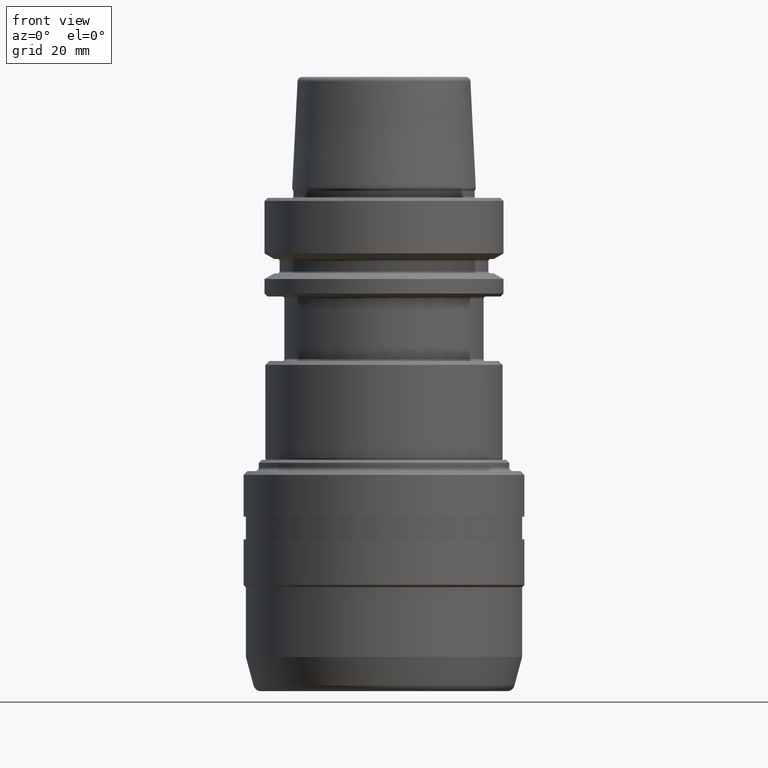
[diagram: clean part render]
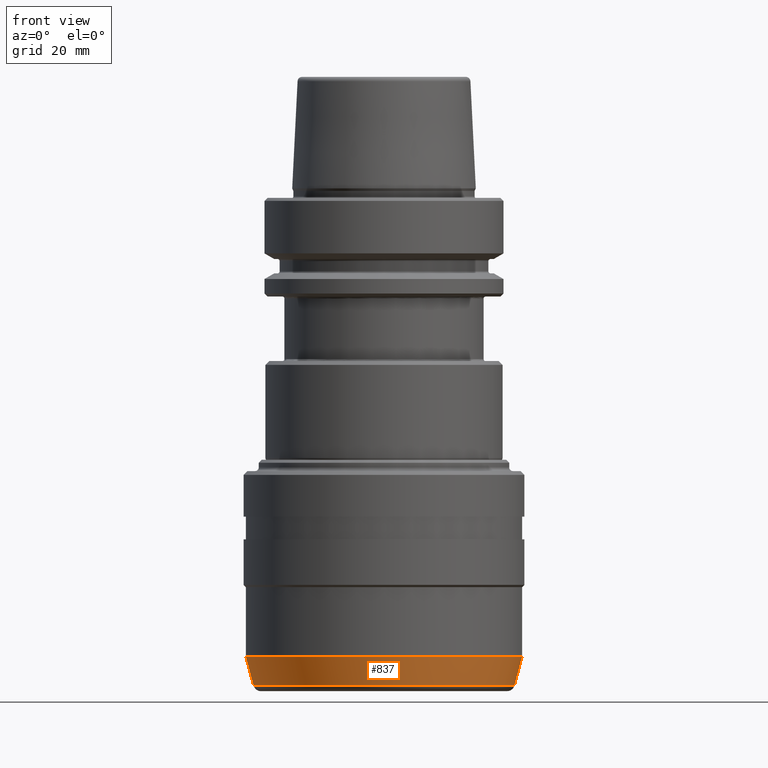
[diagram: same view with one face highlighted and labeled with its STEP entity id]
A machine part, front view. The second image highlights one B-rep face of the part: STEP entity #837.
In plain terms, the highlighted conical surface has half-angle 15 deg.
Its self-contained STEP definition (entity closure, byte-faithful):
#58 = CARTESIAN_POINT ( 'NONE',  ( -36.39999999999888300, 4.457714348896229400E-015, -120.9987247429033800 ) ) ;
#94 = VECTOR ( 'NONE', #853, 1000.000000000000000 ) ;
#140 = CARTESIAN_POINT ( 'NONE',  ( 0.0000000000000000000, 0.0000000000000000000, -120.9987247429033800 ) ) ;
#180 = EDGE_CURVE ( 'NONE', #665, #948, #1478, .T. ) ;
#243 = DIRECTION ( 'NONE',  ( 1.000000000000000000, 0.0000000000000000000, 0.0000000000000000000 ) ) ;
#250 = ORIENTED_EDGE ( 'NONE', *, *, #354, .F. ) ;
#278 = CARTESIAN_POINT ( 'NONE',  ( 0.0000000000000000000, 0.0000000000000000000, -120.9987247429033800 ) ) ;
#354 = EDGE_CURVE ( 'NONE', #1602, #948, #1171, .T. ) ;
#367 = CARTESIAN_POINT ( 'NONE',  ( 36.39999999999888300, 0.0000000000000000000, -120.9987247429033800 ) ) ;
#518 = LINE ( 'NONE', #1352, #94 ) ;
#531 = AXIS2_PLACEMENT_3D ( 'NONE', #140, #759, #1971 ) ;
#534 = AXIS2_PLACEMENT_3D ( 'NONE', #760, #750, #797 ) ;
#665 = VERTEX_POINT ( 'NONE', #1136 ) ;
#750 = DIRECTION ( 'NONE',  ( -0.0000000000000000000, -0.0000000000000000000, 1.000000000000000000 ) ) ;
#759 = DIRECTION ( 'NONE',  ( -0.0000000000000000000, -0.0000000000000000000, 1.000000000000000000 ) ) ;
#760 = CARTESIAN_POINT ( 'NONE',  ( 0.0000000000000000000, 0.0000000000000000000, -128.5163628331034700 ) ) ;
#797 = DIRECTION ( 'NONE',  ( 1.000000000000000000, 0.0000000000000000000, 0.0000000000000000000 ) ) ;
#837 = ADVANCED_FACE ( 'NONE', ( #1830 ), #1687, .T. ) ;
#853 = DIRECTION ( 'NONE',  ( -0.2588190451024925400, 3.169619151431419200E-017, 0.9659258262890758600 ) ) ;
#948 = VERTEX_POINT ( 'NONE', #367 ) ;
#978 = AXIS2_PLACEMENT_3D ( 'NONE', #278, #1999, #243 ) ;
#1018 = DIRECTION ( 'NONE',  ( 0.2588190451024925400, 0.0000000000000000000, 0.9659258262890758600 ) ) ;
#1030 = EDGE_CURVE ( 'NONE', #1611, #1602, #518, .T. ) ;
#1104 = ORIENTED_EDGE ( 'NONE', *, *, #1585, .T. ) ;
#1119 = ORIENTED_EDGE ( 'NONE', *, *, #1030, .F. ) ;
#1136 = CARTESIAN_POINT ( 'NONE',  ( 34.38565494474027400, 0.0000000000000000000, -128.5163628331034700 ) ) ;
#1171 = CIRCLE ( 'NONE', #531, 36.39999999999888300 ) ;
#1192 = CARTESIAN_POINT ( 'NONE',  ( -34.38565494474027400, 4.211028226466153600E-015, -128.5163628331034700 ) ) ;
#1352 = CARTESIAN_POINT ( 'NONE',  ( -36.39999999999888300, 4.457714348896229400E-015, -120.9987247429033800 ) ) ;
#1478 = LINE ( 'NONE', #1571, #1911 ) ;
#1571 = CARTESIAN_POINT ( 'NONE',  ( 36.39999999999888300, 0.0000000000000000000, -120.9987247429033800 ) ) ;
#1585 = EDGE_CURVE ( 'NONE', #1611, #665, #1728, .T. ) ;
#1602 = VERTEX_POINT ( 'NONE', #58 ) ;
#1611 = VERTEX_POINT ( 'NONE', #1192 ) ;
#1687 = CONICAL_SURFACE ( 'NONE', #978, 36.39999999999888300, 0.2617993877991202100 ) ;
#1728 = CIRCLE ( 'NONE', #534, 34.38565494474055800 ) ;
#1830 = FACE_OUTER_BOUND ( 'NONE', #1995, .T. ) ;
#1835 = ORIENTED_EDGE ( 'NONE', *, *, #180, .T. ) ;
#1911 = VECTOR ( 'NONE', #1018, 1000.000000000000000 ) ;
#1971 = DIRECTION ( 'NONE',  ( 1.000000000000000000, 0.0000000000000000000, 0.0000000000000000000 ) ) ;
#1995 = EDGE_LOOP ( 'NONE', ( #1119, #1104, #1835, #250 ) ) ;
#1999 = DIRECTION ( 'NONE',  ( -0.0000000000000000000, -0.0000000000000000000, 1.000000000000000000 ) ) ;